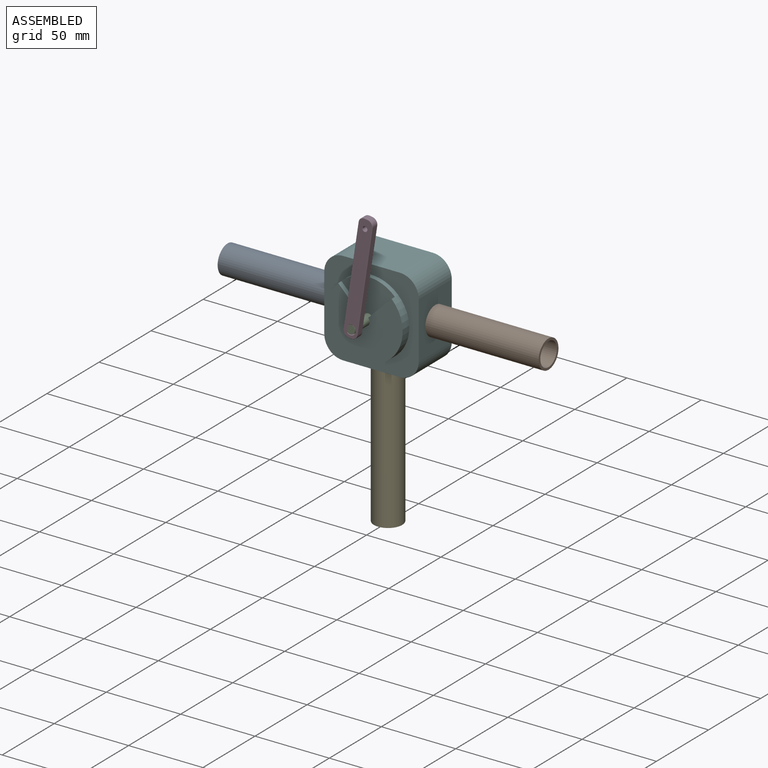
[diagram: assembled view]
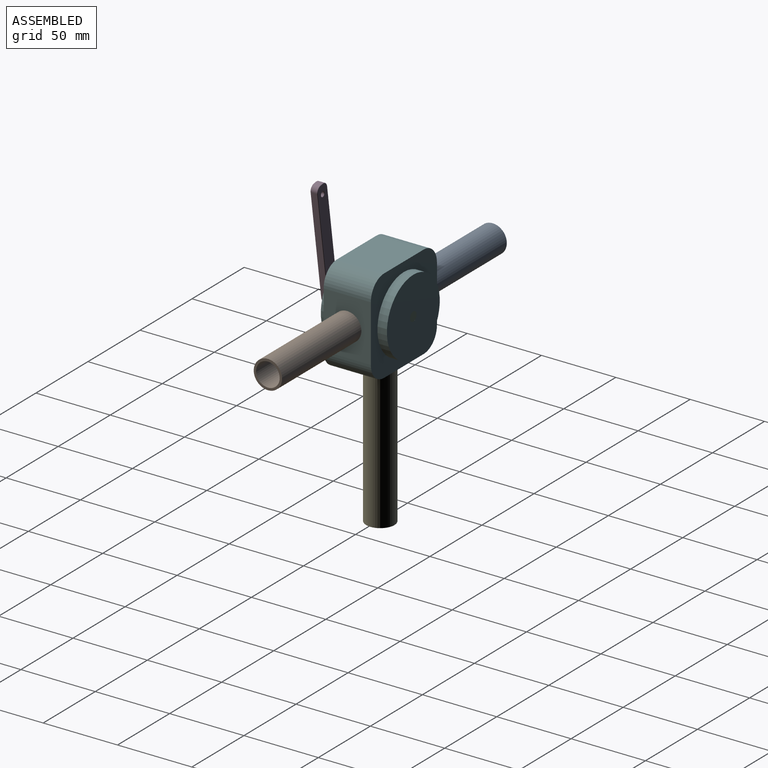
[diagram: assembled view, second angle]
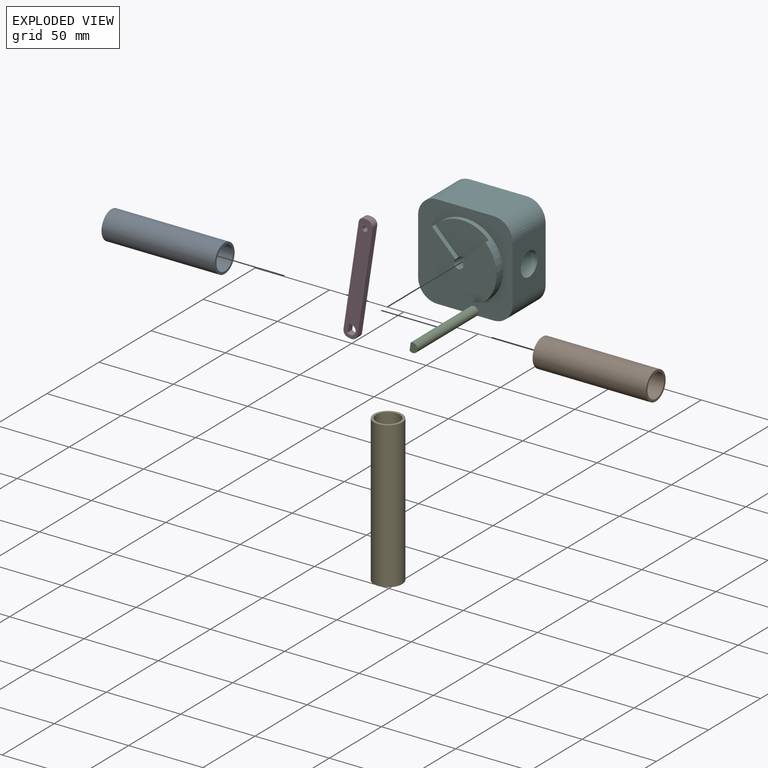
[diagram: exploded view]
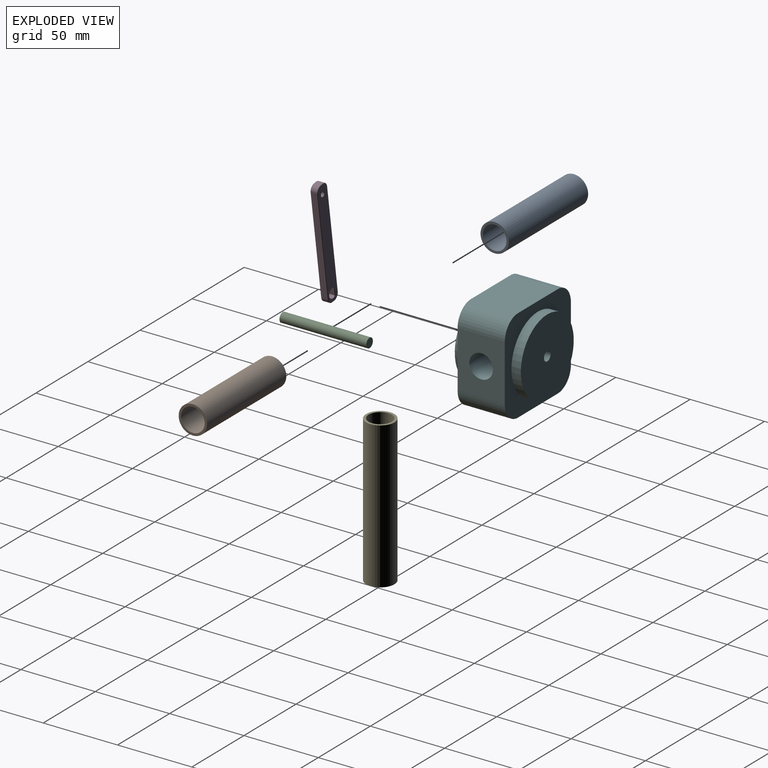
[diagram: exploded view, second angle]
ASSEMBLY  parts=6 mates=5
PART A: 4 faces, bbox 76.2x19.1x19.1 mm
  f0: cylinder r=7.94mm len=76.2mm, axis (1,0,0), area 3800.3mm2, adj f2,f3
  f1: cylinder r=9.53mm len=76.2mm, axis (1,0,0), area 4560.4mm2, adj f2,f3
  f2: plane 19.05x19.05mm, normal (-1,0,0), area 87.1mm2, adj f0,f1
  f3: plane 19.05x19.05mm, normal (1,0,0), area 87.1mm2, adj f0,f1
PART B: 4 faces, bbox 76.2x19.1x19.1 mm
  f0: cylinder r=7.94mm len=76.2mm, axis (-1,0,0), area 3800.3mm2, adj f2,f3
  f1: cylinder r=9.53mm len=76.2mm, axis (-1,0,0), area 4560.4mm2, adj f2,f3
  f2: plane 19.05x19.05mm, normal (1,0,0), area 87.1mm2, adj f0,f1
  f3: plane 19.05x19.05mm, normal (-1,0,0), area 87.1mm2, adj f0,f1
PART C: 5 faces, bbox 6.4x58.4x6.4 mm
  f0: plane 6.35x5.02mm, normal (0,-1,0), area 26.9mm2, adj f1,f3
  f1: cylinder r=3.17mm len=58.42mm, axis (0,1,0), area 1096.5mm2, adj f0,f2,f3,f4
  f2: plane 6.35x6.35mm, normal (0,1,0), area 31.7mm2, adj f1
  f3: plane 11.43x5.17mm, normal (-1,0,0), area 59mm2, adj f0,f1,f4
  f4: plane 5.17x1.33mm, normal (0,-1,0), area 4.8mm2, adj f1,f3
PART D: 35 faces, bbox 10.2x4.8x76.8 mm
  f0: cylinder r=3.17mm len=6.35mm, axis (0,-1,0), area 59.2mm2, adj f5,f32,f34
  f1: plane 68.58x4.25mm, normal (-1,0,0), area 291.8mm2, adj f8,f11,f21,f28
  f2: plane 4.25x1.91mm, normal (0,0,-1), area 8.1mm2, adj f8,f9,f20,f29
  f3: plane 68.58x4.25mm, normal (1,0,0), area 291.8mm2, adj f9,f10,f16,f25
  f4: plane 4.25x1.91mm, normal (0,0,1), area 8.1mm2, adj f10,f11,f17,f24
  f5: plane 5.17x4.25mm, normal (1,0,0), area 22mm2, adj f0,f31,f33
  f6: plane 75.69x9.02mm, normal (0,1,0), area 629.1mm2, adj f13,f15,f16,f17,f18,f19,f20,f21
  f7: plane 75.69x9.02mm, normal (0,-1,0), area 629.1mm2, adj f14,f23,f24,f25,f26,f27,f28,f29
  f8: cylinder r=3.81mm len=4.25mm, axis (0,1,0), area 25.5mm2, adj f1,f2,f22,f30
  f9: cylinder r=3.81mm len=4.25mm, axis (0,-1,0), area 25.5mm2, adj f2,f3,f18,f27
  f10: cylinder r=3.81mm len=4.25mm, axis (0,1,0), area 25.5mm2, adj f3,f4,f15,f23
  f11: cylinder r=3.81mm len=4.25mm, axis (0,-1,0), area 25.5mm2, adj f1,f4,f19,f26
  f12: cylinder r=1.59mm len=4.25mm, axis (0,-1,0), area 42.4mm2, adj f13,f14
  f13: torus R=1.84mm, axis (0,-1,0), area 4.2mm2, adj f6,f12
  f14: torus R=1.84mm, axis (0,-1,0), area 4.2mm2, adj f7,f12
  f15: torus R=3.56mm, axis (0,-1,0), area 2.3mm2, adj f6,f10,f16,f17
  f16: cylinder r=0.25mm len=68.58mm, axis (0,0,-1), area 27.4mm2, adj f3,f6,f15,f18
  f17: cylinder r=0.25mm len=1.91mm, axis (1,0,0), area 0.8mm2, adj f4,f6,f15,f19
  f18: torus R=3.56mm, axis (0,-1,0), area 2.3mm2, adj f6,f9,f16,f20
  f19: torus R=3.56mm, axis (0,-1,0), area 2.3mm2, adj f6,f11,f17,f21
  f20: cylinder r=0.25mm len=1.91mm, axis (-1,0,0), area 0.8mm2, adj f2,f6,f18,f22
  f21: cylinder r=0.25mm len=68.58mm, axis (0,0,1), area 27.4mm2, adj f1,f6,f19,f22
  f22: torus R=3.56mm, axis (0,-1,0), area 2.3mm2, adj f6,f8,f20,f21
  f23: torus R=3.56mm, axis (0,-1,0), area 2.3mm2, adj f7,f10,f24,f25
  f24: cylinder r=0.25mm len=1.91mm, axis (-1,0,0), area 0.8mm2, adj f4,f7,f23,f26
  f25: cylinder r=0.25mm len=68.58mm, axis (0,0,1), area 27.4mm2, adj f3,f7,f23,f27
  f26: torus R=3.56mm, axis (0,-1,0), area 2.3mm2, adj f7,f11,f24,f28
  f27: torus R=3.56mm, axis (0,-1,0), area 2.3mm2, adj f7,f9,f25,f29
  f28: cylinder r=0.25mm len=68.58mm, axis (0,0,-1), area 27.4mm2, adj f1,f7,f26,f30
  f29: cylinder r=0.25mm len=1.91mm, axis (1,0,0), area 0.8mm2, adj f2,f7,f27,f30
  f30: torus R=3.56mm, axis (0,-1,0), area 2.3mm2, adj f7,f8,f28,f29
  f31: cylinder r=0.25mm len=5.42mm, axis (0,0,1), area 2.1mm2, adj f5,f7,f32
  f32: torus R=3.43mm, axis (0,-1,0), area 5.8mm2, adj f0,f7,f31
  f33: cylinder r=0.25mm len=5.42mm, axis (0,0,-1), area 2.1mm2, adj f5,f6,f34
  f34: torus R=3.43mm, axis (0,-1,0), area 5.8mm2, adj f0,f6,f33
PART E: 4 faces, bbox 19.1x19.1x98.4 mm
  f0: cylinder r=7.94mm len=98.43mm, axis (0,0,1), area 4908.7mm2, adj f2,f3
  f1: cylinder r=9.53mm len=98.43mm, axis (0,0,1), area 5890.5mm2, adj f2,f3
  f2: plane 19.05x19.05mm, normal (0,0,-1), area 87.1mm2, adj f0,f1
  f3: plane 19.05x19.05mm, normal (0,0,1), area 87.1mm2, adj f0,f1
PART F: 24 faces, bbox 63.5x44.5x63.5 mm
  f0: cylinder r=3.17mm len=14.61mm, axis (0,1,0), area 271.5mm2, adj f1,f3,f4,f18,f19,f21,f22,f23
  f1: plane 50.8x43.38mm, normal (0,-1,0), area 1496.4mm2, adj f0,f11,f21,f22
  f2: cylinder r=3.17mm len=14.61mm, axis (0,1,0), area 287.4mm2, adj f3,f4,f13,f18,f19
  f3: cylinder r=7.94mm len=29.51mm, axis (-1,0,0), area 1315.5mm2, adj f0,f2,f6,f18,f19
  f4: cylinder r=7.94mm len=29.51mm, axis (-1,0,0), area 1315.5mm2, adj f0,f2,f8,f18,f19
  f5: plane 38.1x31.75mm, normal (0,0,1), area 1209.7mm2, adj f9,f10,f14,f17
  f6: plane 38.1x31.75mm, normal (-1,0,0), area 1011.7mm2, adj f3,f9,f10,f14,f15
  f7: plane 38.1x31.75mm, normal (0,0,-1), area 1011.7mm2, adj f9,f10,f15,f16,f18
  f8: plane 38.1x31.75mm, normal (1,0,0), area 1011.7mm2, adj f4,f9,f10,f16,f17
  f9: plane 63.5x63.5mm, normal (0,-1,0), area 1867mm2, adj f5,f6,f7,f8,f11,f14,f15,f16
  f10: plane 63.5x63.5mm, normal (0,1,0), area 1867mm2, adj f5,f6,f7,f8,f12,f14,f15,f16
  f11: cylinder r=25.4mm len=50.8mm, axis (0,1,0), area 886.7mm2, adj f1,f9,f21,f22,f23
  f12: cylinder r=25.4mm len=50.8mm, axis (0,-1,0), area 1013.4mm2, adj f10,f13
  f13: plane 50.8x50.8mm, normal (0,1,0), area 1995.2mm2, adj f2,f12
  f14: cylinder r=12.7mm len=31.75mm, axis (0,-1,0), area 633.4mm2, adj f5,f6,f9,f10
  f15: cylinder r=12.7mm len=31.75mm, axis (0,1,0), area 633.4mm2, adj f6,f7,f9,f10
  f16: cylinder r=12.7mm len=31.75mm, axis (0,-1,0), area 633.4mm2, adj f7,f8,f9,f10
  f17: cylinder r=12.7mm len=31.75mm, axis (0,1,0), area 633.4mm2, adj f5,f8,f9,f10
  f18: cylinder r=7.94mm len=29.51mm, axis (0,0,-1), area 1315.5mm2, adj f0,f2,f3,f4,f7
  f19: cylinder r=7.94mm len=16.81mm, axis (0,0,-1), area 682.1mm2, adj f0,f2,f3,f4,f20
  f20: cone r=0mm half-angle=59deg, axis (0,0,-1), area 230.9mm2, adj f19
  f21: plane 15.72x15.72mm, normal (0.71,0,0.71), area 70.6mm2, adj f0,f1,f11,f23
  f22: plane 15.72x15.72mm, normal (-0.71,0,0.71), area 70.6mm2, adj f0,f1,f11,f23
  f23: plane 35.92x23.17mm, normal (0,-1,0), area 498.8mm2, adj f0,f11,f21,f22
PLACE A t=(-1.19,16.75,-0.12)mm
PLACE B t=(-1.19,16.75,-0.12)mm
PLACE C rot(axis=(0,1,0),8.5deg) t=(-1.19,15.48,-0.11)mm
PLACE D rot(axis=(0,1,0),8.5deg) t=(-0.76,15.22,-0.18)mm
PLACE E t=(-1.19,16.75,-22.34)mm
PLACE F t=(-1.19,16.75,-0.12)mm fixed
MATE fastened B.f0 <-> F.f3  axis (-1,0,0) through (30.6,0.87,-0.12)mm
MATE fastened A.f0 <-> F.f3  axis (1,0,0) through (-32.9,0.87,-0.12)mm
MATE revolute C.f1 <-> F.f11  axis (0,1,0) through (-1.15,23.1,-0.12)mm
MATE fastened E.f0 <-> F.f18  axis (0,0,1) through (-1.15,0.87,-31.87)mm
MATE fastened C.f0 <-> D.f0  axis (0,-1,0) through (-0.73,-35.32,-0.18)mm
